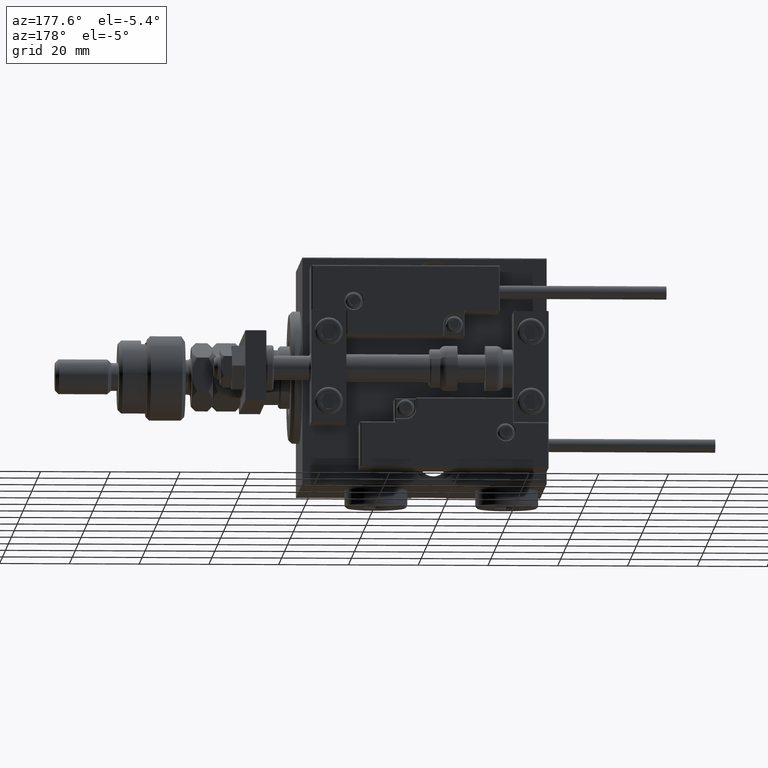
[diagram: clean part render]
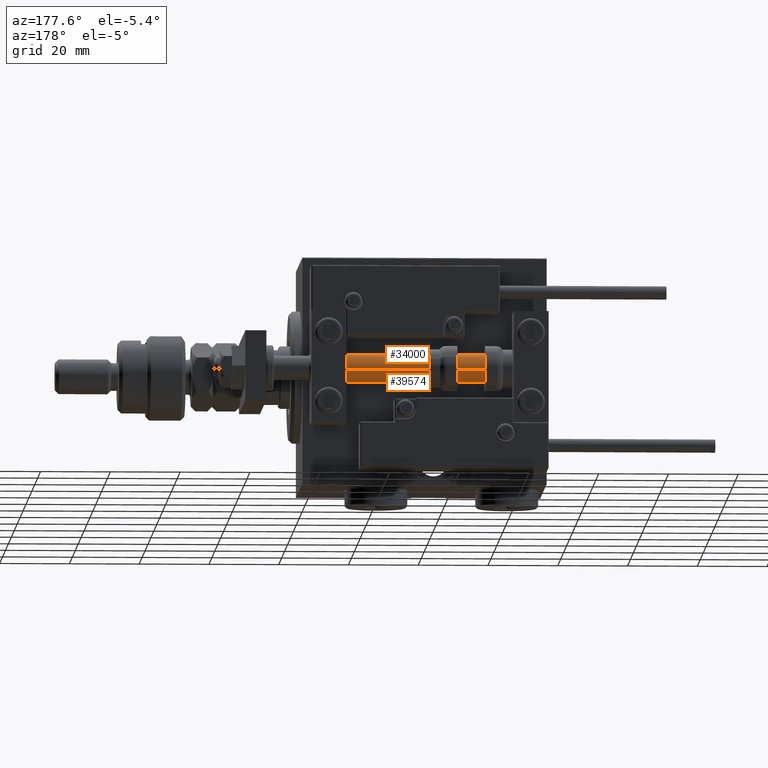
[diagram: same view with one multi-face feature highlighted, each face labeled with its STEP entity id]
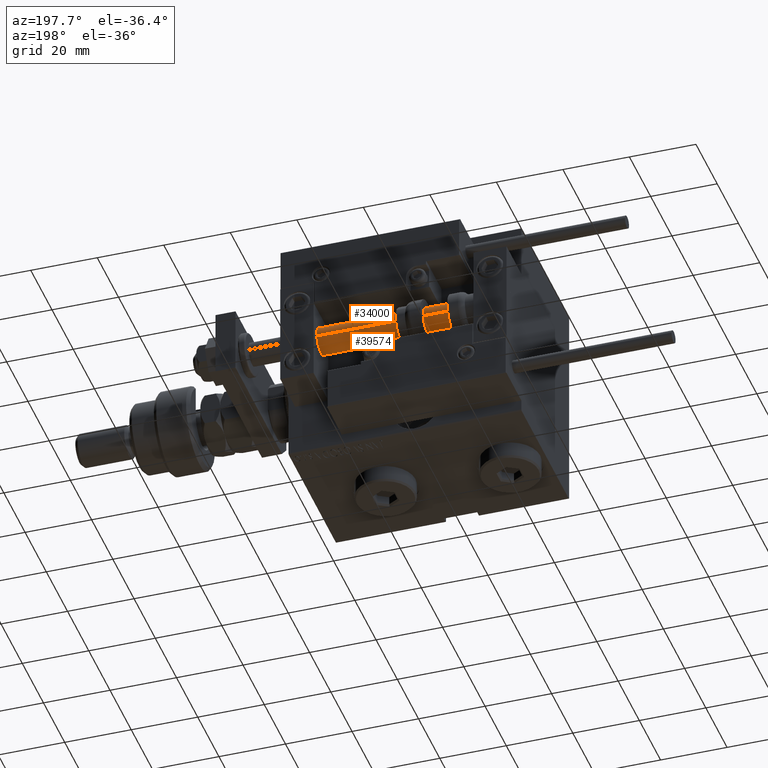
[diagram: same view with one multi-face feature highlighted, each face labeled with its STEP entity id]
A machine part, auxiliary view. The highlighted faces form ONE feature: a constant-radius fillet chain: 2 tangent blend faces with common blend radius 4 mm. The faces share edges in the B-rep.
A second angle (auxiliary view) of the same feature is appended — it is thin or edge-on in the first view.
Their STEP definitions:
[1] entity #34000 (Cylinder):
#458 = VERTEX_POINT ( 'NONE', #31664 ) ;
#610 = LINE ( 'NONE', #21615, #8213 ) ;
#1583 = CARTESIAN_POINT ( 'NONE',  ( 0.000000000000000000, 0.000000000000000000, 2.000000000000029310 ) ) ;
#3920 = DIRECTION ( 'NONE',  ( -0.000000000000000000, -0.000000000000000000, -1.000000000000000000 ) ) ;
#5142 = DIRECTION ( 'NONE',  ( -0.000000000000000000, -0.000000000000000000, 1.000000000000000000 ) ) ;
#5171 = AXIS2_PLACEMENT_3D ( 'NONE', #53749, #23774, #32216 ) ;
#6279 = VERTEX_POINT ( 'NONE', #8232 ) ;
#6752 = EDGE_CURVE ( 'NONE', #458, #9900, #26679, .T. ) ;
#8213 = VECTOR ( 'NONE', #3920, 1000.000000000000000 ) ;
#8232 = CARTESIAN_POINT ( 'NONE',  ( 4.000000000000000000, 4.898587196589412829E-16, 70.00000000000000000 ) ) ;
#8388 = DIRECTION ( 'NONE',  ( -0.000000000000000000, -0.000000000000000000, -1.000000000000000000 ) ) ;
#9777 = DIRECTION ( 'NONE',  ( 1.000000000000000000, 0.000000000000000000, 0.000000000000000000 ) ) ;
#9900 = VERTEX_POINT ( 'NONE', #26548 ) ;
#11955 = VERTEX_POINT ( 'NONE', #35990 ) ;
#14757 = CIRCLE ( 'NONE', #5171, 4.000000000000000000 ) ;
#15358 = AXIS2_PLACEMENT_3D ( 'NONE', #1583, #5142, #9777 ) ;
#16415 = EDGE_CURVE ( 'NONE', #11955, #6279, #14757, .T. ) ;
#16996 = DIRECTION ( 'NONE',  ( -0.000000000000000000, -0.000000000000000000, -1.000000000000000000 ) ) ;
#17550 = ORIENTED_EDGE ( 'NONE', *, *, #53161, .F. ) ;
#17655 = FACE_OUTER_BOUND ( 'NONE', #34478, .T. ) ;
#21615 = CARTESIAN_POINT ( 'NONE',  ( 4.000000000000000000, 4.898587196589412829E-16, 70.00000000000000000 ) ) ;
#23774 = DIRECTION ( 'NONE',  ( 0.000000000000000000, 0.000000000000000000, 1.000000000000000000 ) ) ;
#24413 = ORIENTED_EDGE ( 'NONE', *, *, #16415, .F. ) ;
#25217 = ORIENTED_EDGE ( 'NONE', *, *, #6752, .T. ) ;
#26548 = CARTESIAN_POINT ( 'NONE',  ( 4.000000000000000000, 4.898587196589412829E-16, 2.000000000000029310 ) ) ;
#26679 = CIRCLE ( 'NONE', #15358, 4.000000000000000000 ) ;
#29888 = EDGE_CURVE ( 'NONE', #11955, #458, #41553, .T. ) ;
#31664 = CARTESIAN_POINT ( 'NONE',  ( -4.000000000000000000, 0.000000000000000000, 2.000000000000029310 ) ) ;
#32216 = DIRECTION ( 'NONE',  ( 1.000000000000000000, 0.000000000000000000, 0.000000000000000000 ) ) ;
#33234 = CYLINDRICAL_SURFACE ( 'NONE', #33704, 4.000000000000000000 ) ;
#33704 = AXIS2_PLACEMENT_3D ( 'NONE', #38400, #8388, #50125 ) ;
#34000 = ADVANCED_FACE ( 'NONE', ( #17655 ), #33234, .T. ) ;
#34478 = EDGE_LOOP ( 'NONE', ( #17550, #24413, #36337, #25217 ) ) ;
#35990 = CARTESIAN_POINT ( 'NONE',  ( -4.000000000000000000, 0.000000000000000000, 70.00000000000000000 ) ) ;
#36337 = ORIENTED_EDGE ( 'NONE', *, *, #29888, .T. ) ;
#37460 = CARTESIAN_POINT ( 'NONE',  ( -4.000000000000000000, 0.000000000000000000, 70.00000000000000000 ) ) ;
#38400 = CARTESIAN_POINT ( 'NONE',  ( 0.000000000000000000, 0.000000000000000000, 70.00000000000000000 ) ) ;
#41553 = LINE ( 'NONE', #37460, #51734 ) ;
#50125 = DIRECTION ( 'NONE',  ( -1.000000000000000000, 0.000000000000000000, 0.000000000000000000 ) ) ;
#51734 = VECTOR ( 'NONE', #16996, 1000.000000000000000 ) ;
#53161 = EDGE_CURVE ( 'NONE', #6279, #9900, #610, .T. ) ;
#53749 = CARTESIAN_POINT ( 'NONE',  ( 0.000000000000000000, 0.000000000000000000, 70.00000000000000000 ) ) ;
[2] entity #39574 (Cylinder):
#458 = VERTEX_POINT ( 'NONE', #31664 ) ;
#610 = LINE ( 'NONE', #21615, #8213 ) ;
#1572 = DIRECTION ( 'NONE',  ( -0.000000000000000000, -0.000000000000000000, -1.000000000000000000 ) ) ;
#1912 = CIRCLE ( 'NONE', #8869, 4.000000000000000000 ) ;
#2565 = ORIENTED_EDGE ( 'NONE', *, *, #8507, .F. ) ;
#2646 = CYLINDRICAL_SURFACE ( 'NONE', #36588, 4.000000000000000000 ) ;
#3920 = DIRECTION ( 'NONE',  ( -0.000000000000000000, -0.000000000000000000, -1.000000000000000000 ) ) ;
#5045 = ORIENTED_EDGE ( 'NONE', *, *, #53161, .T. ) ;
#6279 = VERTEX_POINT ( 'NONE', #8232 ) ;
#7597 = AXIS2_PLACEMENT_3D ( 'NONE', #45497, #40612, #16309 ) ;
#8213 = VECTOR ( 'NONE', #3920, 1000.000000000000000 ) ;
#8232 = CARTESIAN_POINT ( 'NONE',  ( 4.000000000000000000, 4.898587196589412829E-16, 70.00000000000000000 ) ) ;
#8507 = EDGE_CURVE ( 'NONE', #6279, #11955, #19763, .T. ) ;
#8869 = AXIS2_PLACEMENT_3D ( 'NONE', #40866, #36787, #53409 ) ;
#9900 = VERTEX_POINT ( 'NONE', #26548 ) ;
#11955 = VERTEX_POINT ( 'NONE', #35990 ) ;
#14588 = ORIENTED_EDGE ( 'NONE', *, *, #29888, .F. ) ;
#16309 = DIRECTION ( 'NONE',  ( 1.000000000000000000, 0.000000000000000000, 0.000000000000000000 ) ) ;
#16996 = DIRECTION ( 'NONE',  ( -0.000000000000000000, -0.000000000000000000, -1.000000000000000000 ) ) ;
#19294 = DIRECTION ( 'NONE',  ( -1.000000000000000000, 0.000000000000000000, 0.000000000000000000 ) ) ;
#19763 = CIRCLE ( 'NONE', #7597, 4.000000000000000000 ) ;
#21615 = CARTESIAN_POINT ( 'NONE',  ( 4.000000000000000000, 4.898587196589412829E-16, 70.00000000000000000 ) ) ;
#24319 = ORIENTED_EDGE ( 'NONE', *, *, #47770, .T. ) ;
#26548 = CARTESIAN_POINT ( 'NONE',  ( 4.000000000000000000, 4.898587196589412829E-16, 2.000000000000029310 ) ) ;
#27216 = FACE_OUTER_BOUND ( 'NONE', #46525, .T. ) ;
#29888 = EDGE_CURVE ( 'NONE', #11955, #458, #41553, .T. ) ;
#31569 = CARTESIAN_POINT ( 'NONE',  ( 0.000000000000000000, 0.000000000000000000, 70.00000000000000000 ) ) ;
#31664 = CARTESIAN_POINT ( 'NONE',  ( -4.000000000000000000, 0.000000000000000000, 2.000000000000029310 ) ) ;
#35990 = CARTESIAN_POINT ( 'NONE',  ( -4.000000000000000000, 0.000000000000000000, 70.00000000000000000 ) ) ;
#36588 = AXIS2_PLACEMENT_3D ( 'NONE', #31569, #1572, #19294 ) ;
#36787 = DIRECTION ( 'NONE',  ( -0.000000000000000000, -0.000000000000000000, 1.000000000000000000 ) ) ;
#37460 = CARTESIAN_POINT ( 'NONE',  ( -4.000000000000000000, 0.000000000000000000, 70.00000000000000000 ) ) ;
#39574 = ADVANCED_FACE ( 'NONE', ( #27216 ), #2646, .T. ) ;
#40612 = DIRECTION ( 'NONE',  ( 0.000000000000000000, 0.000000000000000000, 1.000000000000000000 ) ) ;
#40866 = CARTESIAN_POINT ( 'NONE',  ( 0.000000000000000000, 0.000000000000000000, 2.000000000000029310 ) ) ;
#41553 = LINE ( 'NONE', #37460, #51734 ) ;
#45497 = CARTESIAN_POINT ( 'NONE',  ( 0.000000000000000000, 0.000000000000000000, 70.00000000000000000 ) ) ;
#46525 = EDGE_LOOP ( 'NONE', ( #2565, #5045, #24319, #14588 ) ) ;
#47770 = EDGE_CURVE ( 'NONE', #9900, #458, #1912, .T. ) ;
#51734 = VECTOR ( 'NONE', #16996, 1000.000000000000000 ) ;
#53161 = EDGE_CURVE ( 'NONE', #6279, #9900, #610, .T. ) ;
#53409 = DIRECTION ( 'NONE',  ( 1.000000000000000000, 0.000000000000000000, 0.000000000000000000 ) ) ;